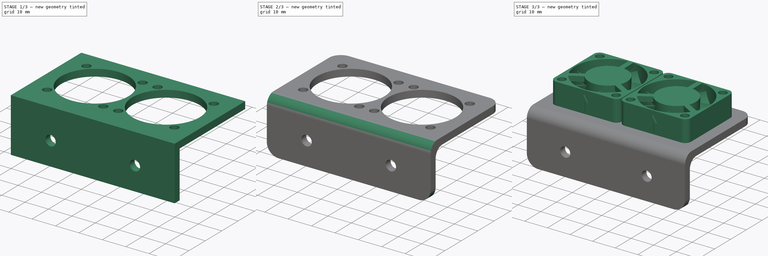
[diagram: build sequence overview — one tinted view per stage of 3, left to right]
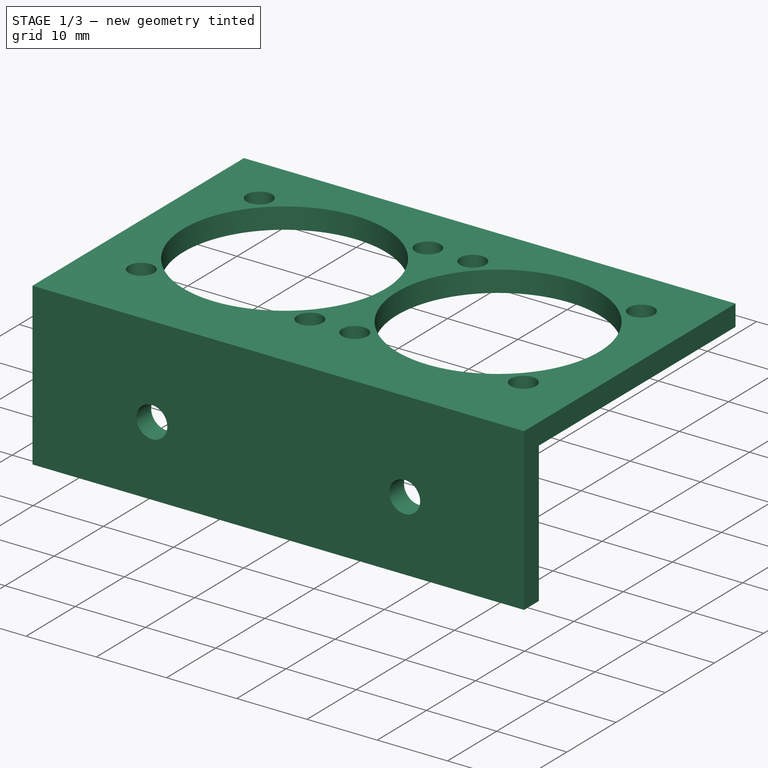
[diagram: stage 1 of 3 — iso view after this stage's code; geometry added in this stage tinted green]
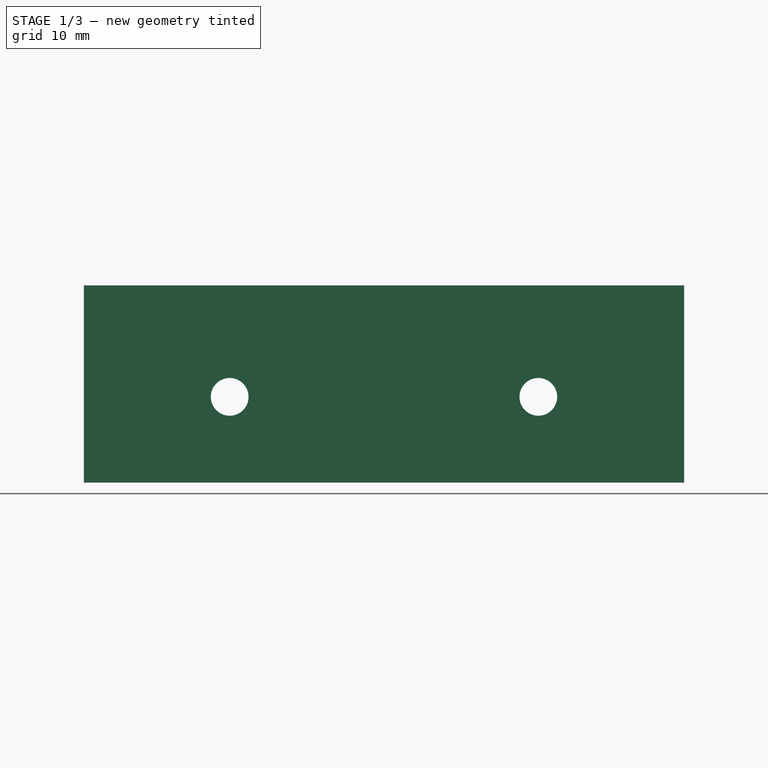
[diagram: stage 1 of 3 — front view after this stage's code; geometry added in this stage tinted green]
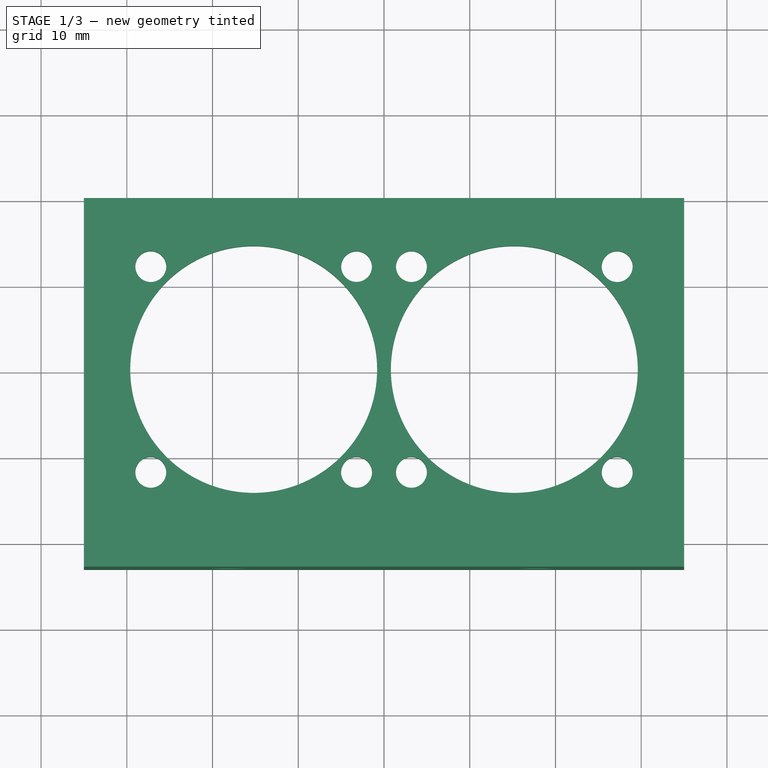
[diagram: stage 1 of 3 — top view after this stage's code; geometry added in this stage tinted green]
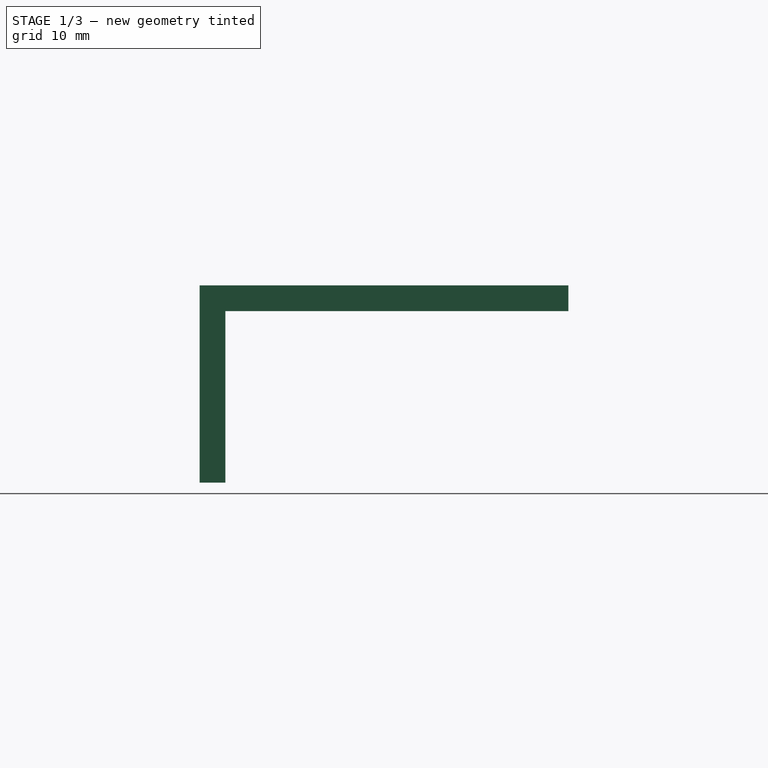
[diagram: stage 1 of 3 — right view after this stage's code; geometry added in this stage tinted green]
FCSTD DOCUMENT  (FreeCAD 0.16R6707 (Git))
Label: Dual_30mm_Fan Bracket
License: CreativeCommons Attribution-NonCommercial
LicenseURL: http://creativecommons.org/licenses/by-nc/4.0/
objects: Part::Feature×4, PartDesign::Fillet×3, Part::MultiFuse×2, Sketcher::SketchObject×2, PartDesign::Pad×2
note: 15 computed .brp shape members not serialized (recipe doc carries the construction recipe); baked Part::Feature solids carry a one-line shape summary decoded from their .brp

FEATURE [Sketcher::SketchObject] Sketch
  sketch-geometry (22):
    g0: LineSegment StartX=-35 StartY=20 StartZ=0 EndX=35 EndY=20 EndZ=0
    g1: LineSegment StartX=35 StartY=20 StartZ=0 EndX=35 EndY=-20 EndZ=0
    g2: LineSegment StartX=35 StartY=-20 StartZ=0 EndX=-35 EndY=-20 EndZ=0
    g3: LineSegment StartX=-35 StartY=-20 StartZ=0 EndX=-35 EndY=20 EndZ=0
    g4: Circle CenterX=-15.2 CenterY=0 CenterZ=0 NormalX=0 NormalY=0 NormalZ=1 Radius=14.4
    g5: Circle CenterX=15.2 CenterY=0 CenterZ=0 NormalX=0 NormalY=0 NormalZ=1 Radius=14.4
    g6: LineSegment [constr] StartX=-27.2 StartY=12 StartZ=0 EndX=-3.2 EndY=12 EndZ=0
    g7: LineSegment [constr] StartX=-3.2 StartY=12 StartZ=0 EndX=-3.2 EndY=-12 EndZ=0
    g8: LineSegment [constr] StartX=-3.2 StartY=-12 StartZ=0 EndX=-27.2 EndY=-12 EndZ=0
    g9: LineSegment [constr] StartX=-27.2 StartY=-12 StartZ=0 EndX=-27.2 EndY=12 EndZ=0
    g10: LineSegment [constr] StartX=3.2 StartY=12 StartZ=0 EndX=27.2 EndY=12 EndZ=0
    g11: LineSegment [constr] StartX=27.2 StartY=12 StartZ=0 EndX=27.2 EndY=-12 EndZ=0
    g12: LineSegment [constr] StartX=27.2 StartY=-12 StartZ=0 EndX=3.2 EndY=-12 EndZ=0
    g13: LineSegment [constr] StartX=3.2 StartY=-12 StartZ=0 EndX=3.2 EndY=12 EndZ=0
    g14: Circle CenterX=-27.2 CenterY=12 CenterZ=0 NormalX=0 NormalY=0 NormalZ=1 Radius=1.8
    g15: Circle CenterX=-3.2 CenterY=12 CenterZ=0 NormalX=0 NormalY=0 NormalZ=1 Radius=1.78947
    g16: Circle CenterX=-3.2 CenterY=-12 CenterZ=0 NormalX=0 NormalY=0 NormalZ=1 Radius=1.8
    g17: Circle CenterX=-27.2 CenterY=-12 CenterZ=0 NormalX=0 NormalY=0 NormalZ=1 Radius=1.8
    g18: Circle CenterX=3.2 CenterY=-12 CenterZ=0 NormalX=0 NormalY=0 NormalZ=1 Radius=1.8
    g19: Circle CenterX=27.2 CenterY=-12 CenterZ=0 NormalX=0 NormalY=0 NormalZ=1 Radius=1.8
    g20: Circle CenterX=27.2 CenterY=12 CenterZ=0 NormalX=0 NormalY=0 NormalZ=1 Radius=1.8
    g21: Circle CenterX=3.2 CenterY=12 CenterZ=0 NormalX=0 NormalY=0 NormalZ=1 Radius=1.8
  constraints (56):
    c: Coincident(g0,g1)
    c: Coincident(g1,g2)
    c: Coincident(g2,g3)
    c: Coincident(g3,g0)
    c: Horizontal(g0)
    c: Horizontal(g2)
    c: Vertical(g1)
    c: Vertical(g3)
    c: Symmetric(g0,g2,g-1)
    c: Symmetric(g2,g1,g-2)
    c: DistanceX(g2,g2) = 70
    c: DistanceY(g1,g1) = 40
    c: PointOnObject(g5,g-1)
    c: Symmetric(g5,g4,g-2)
    c: DistanceX(g4,g-1) = 15.2
    c: Radius(g5) = 14.4
    c: Equal(g5,g4)
    c: Coincident(g6,g7)
    c: Coincident(g7,g8)
    c: Coincident(g8,g9)
    c: Coincident(g9,g6)
    c: Horizontal(g6)
    c: Horizontal(g8)
    c: Vertical(g7)
    c: Vertical(g9)
    c: Coincident(g10,g11)
    c: Coincident(g11,g12)
    c: Coincident(g12,g13)
    c: Coincident(g13,g10)
    c: Horizontal(g10)
    c: Horizontal(g12)
    c: Vertical(g11)
    c: Vertical(g13)
    c: Symmetric(g7,g12,g-2)
    c: Symmetric(g12,g10,g-1)
    c: Symmetric(g7,g6,g-1)
    c: Equal(g8,g7)
    c: Equal(g7,g13)
    c: Equal(g13,g12)
    c: DistanceX(g7,g-1) = 3.2
    c: DistanceY(g7,g7) = 24
    c: Coincident(g14,g6)
    c: Coincident(g15,g6)
    c: Coincident(g16,g7)
    c: Coincident(g17,g8)
    c: Coincident(g18,g12)
    c: Coincident(g19,g11)
    c: Coincident(g20,g10)
    c: Coincident(g21,g10)
    c: Radius(g19) = 1.8
    c: Equal(g19,g21)
    c: Equal(g19,g20)
    c: Equal(g19,g18)
    c: Equal(g19,g16)
    c: Equal(g19,g17)
    c: Equal(g19,g14)
FEATURE [PartDesign::Pad] Pad
  Length = 3
  Length2 = 100
  Sketch = -> Sketch
  Type = 0
FEATURE [Sketcher::SketchObject] Sketch001
  Placement = pos=(0,-20,0) rot=(1,0,0;1.5708rad)
  Support = -> Pad [Face3]
  sketch-geometry (6):
    g0: LineSegment StartX=-35 StartY=3 StartZ=0 EndX=35 EndY=3 EndZ=0
    g1: LineSegment StartX=35 StartY=3 StartZ=0 EndX=35 EndY=-20 EndZ=0
    g2: LineSegment StartX=35 StartY=-20 StartZ=0 EndX=-35 EndY=-20 EndZ=0
    g3: LineSegment StartX=-35 StartY=-20 StartZ=0 EndX=-35 EndY=3 EndZ=0
    g4: Circle CenterX=-18 CenterY=-10 CenterZ=0 NormalX=0 NormalY=0 NormalZ=1 Radius=2.2
    g5: Circle CenterX=18 CenterY=-10 CenterZ=0 NormalX=0 NormalY=0 NormalZ=1 Radius=2.2
  constraints (17):
    c: Coincident(g0,g1)
    c: Coincident(g1,g2)
    c: Coincident(g2,g3)
    c: Coincident(g3,g0)
    c: Horizontal(g0)
    c: Horizontal(g2)
    c: Vertical(g1)
    c: Vertical(g3)
    c: Symmetric(g0,g0,g-2)
    c: DistanceY(g-1,g0) = 3
    c: DistanceX(g0,g0) = 70
    c: DistanceY(g3,g3) = 23
    c: Radius(g4) = 2.2
    c: Equal(g4,g5)
    c: DistanceY(g4,g-1) = 10
    c: Symmetric(g4,g5,g-2)
    c: DistanceX(g4,g-1) = 18
FEATURE [PartDesign::Pad] Pad001
  Length = 3
  Length2 = 100
  Sketch = -> Sketch001
  Type = 0
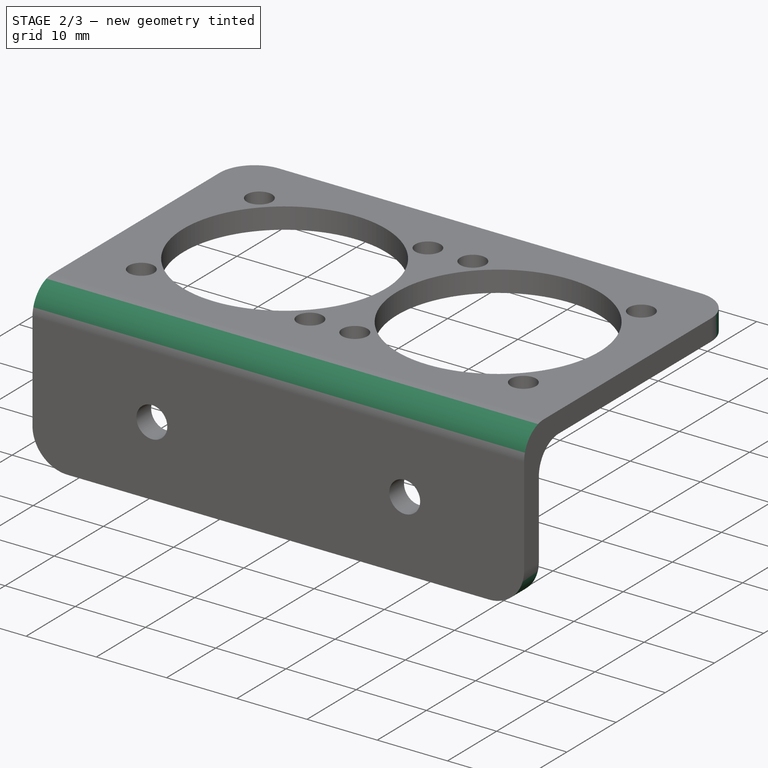
[diagram: stage 2 of 3 — iso view after this stage's code; geometry added in this stage tinted green]
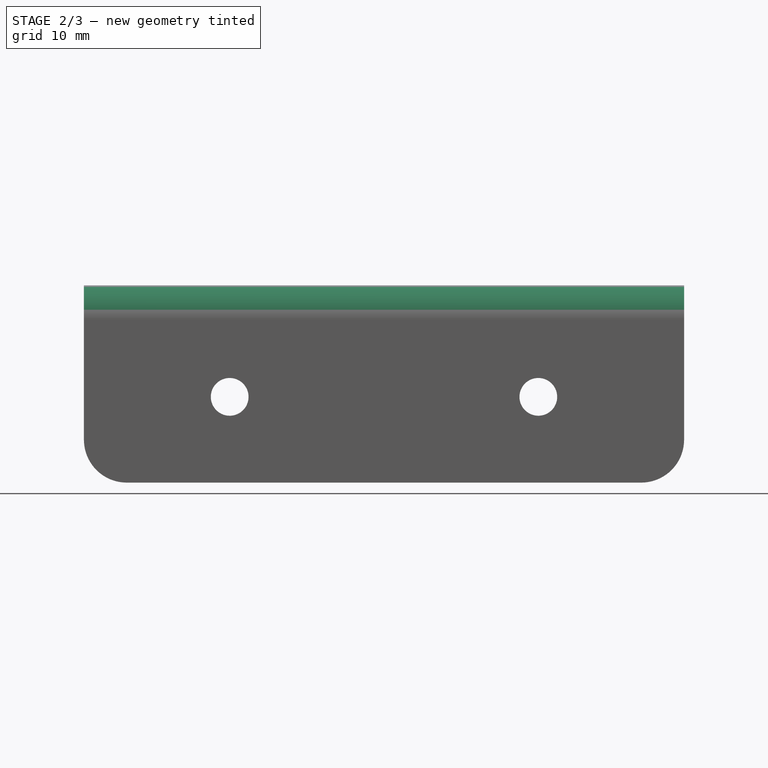
[diagram: stage 2 of 3 — front view after this stage's code; geometry added in this stage tinted green]
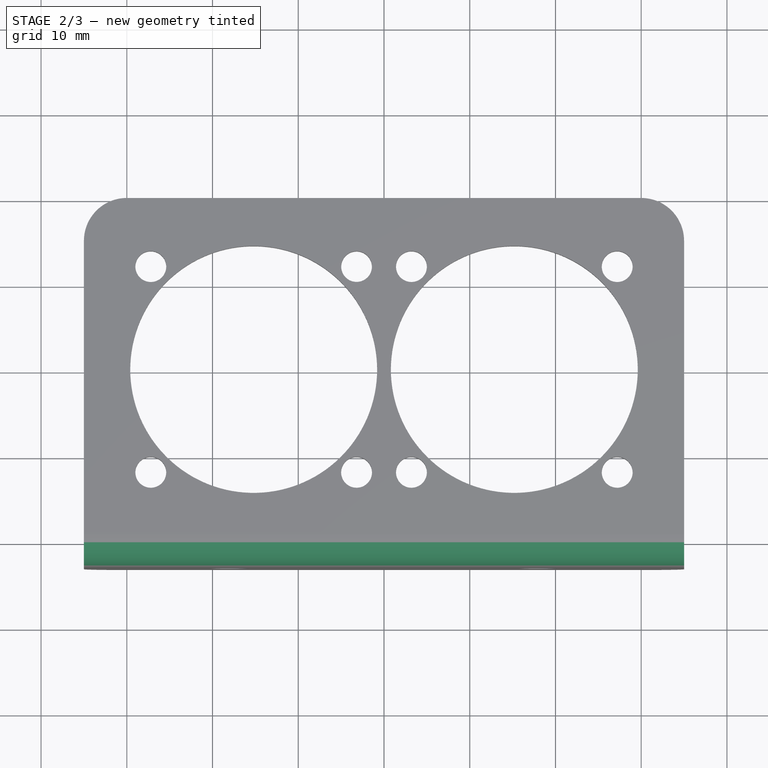
[diagram: stage 2 of 3 — top view after this stage's code; geometry added in this stage tinted green]
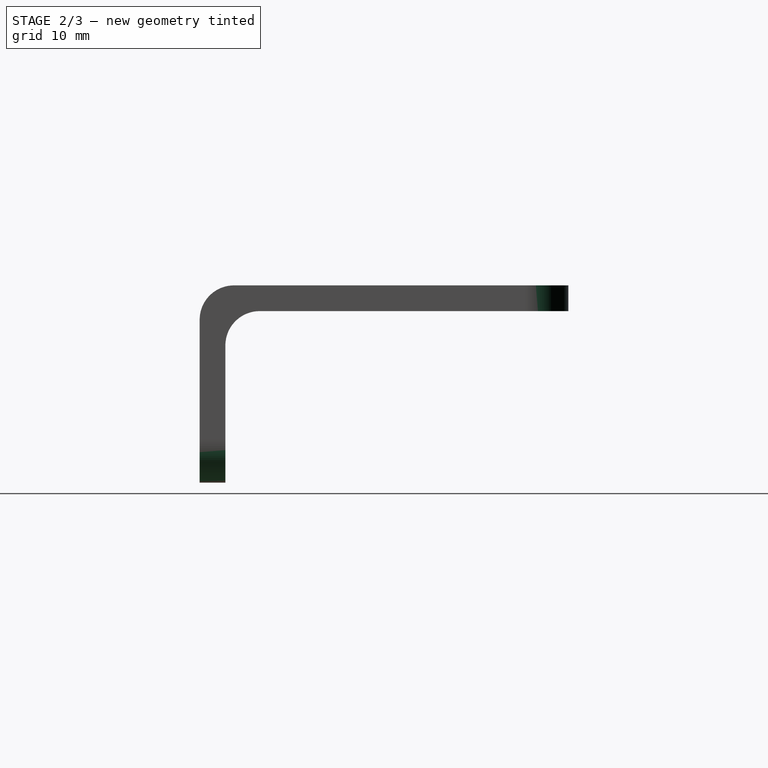
[diagram: stage 2 of 3 — right view after this stage's code; geometry added in this stage tinted green]
FEATURE [PartDesign::Fillet] Fillet
  Base = -> Pad001 [Edge7]
  Radius = 4
FEATURE [PartDesign::Fillet] Fillet001
  Base = -> Fillet [Edge16,Edge23,Edge26,Edge19]
  Radius = 5
FEATURE [PartDesign::Fillet] Fillet002
  Base = -> Fillet001 [Edge55]
  Radius = 4
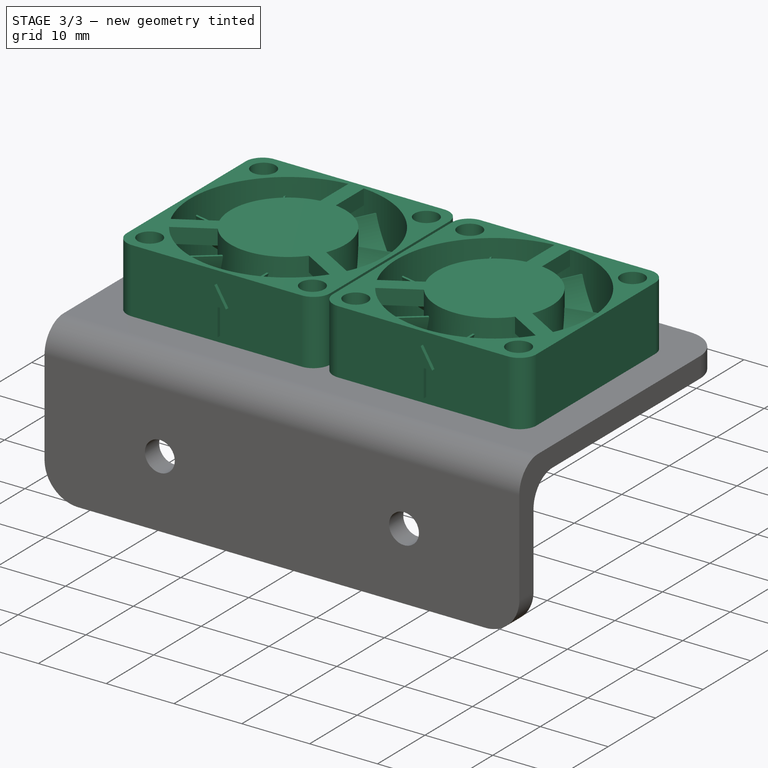
[diagram: stage 3 of 3 — iso view after this stage's code; geometry added in this stage tinted green]
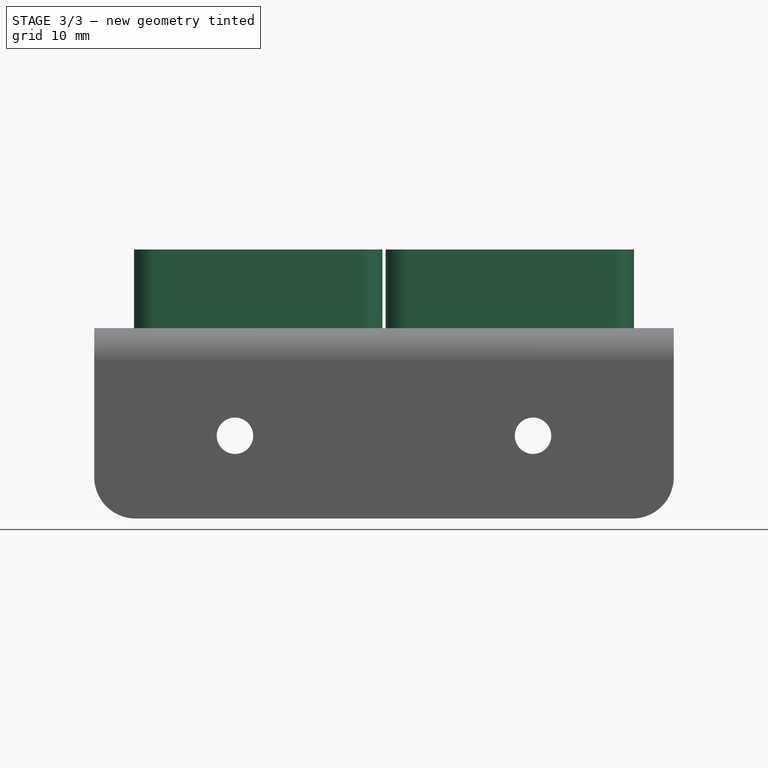
[diagram: stage 3 of 3 — front view after this stage's code; geometry added in this stage tinted green]
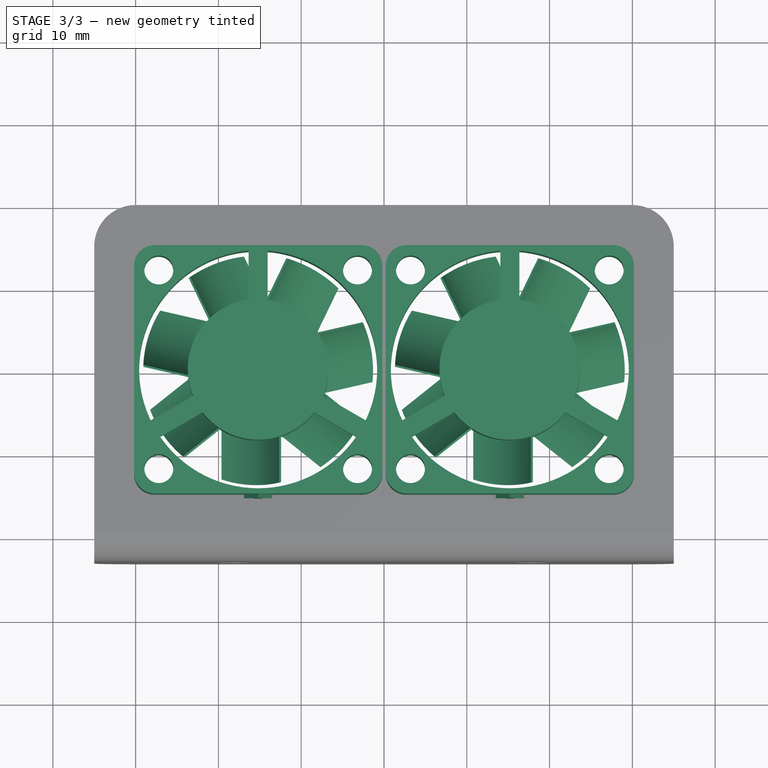
[diagram: stage 3 of 3 — top view after this stage's code; geometry added in this stage tinted green]
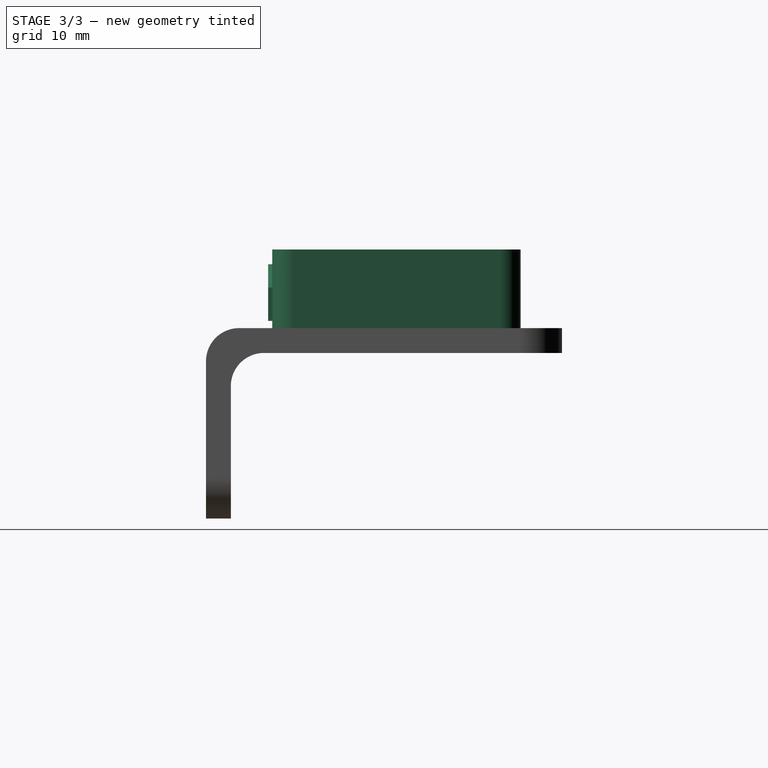
[diagram: stage 3 of 3 — right view after this stage's code; geometry added in this stage tinted green]
FEATURE [Part::Feature] Part__Feature  label="Part 1"
  shape: bbox 30 x 30.5 x 10.5 mm, 33 faces (baked)
FEATURE [Part::Feature] Part__Feature001  label="Part 2"
  shape: bbox 28.66 x 28.3 x 8.25 mm, 39 faces (baked)
FEATURE [Part::MultiFuse] Fusion
  Placement = pos=(15.2,0,2) rot=(0,0,1;0rad)
  Shapes = -> [Part__Feature,Part__Feature001]
FEATURE [Part::Feature] Part__Feature002  label="Part 1"
  shape: bbox 30 x 30.5 x 10.5 mm, 33 faces (baked)
FEATURE [Part::Feature] Part__Feature003  label="Part 2"
  shape: bbox 28.66 x 28.3 x 8.25 mm, 39 faces (baked)
FEATURE [Part::MultiFuse] Fusion001
  Placement = pos=(-15.2,0,2) rot=(0,0,1;0rad)
  Shapes = -> [Part__Feature002,Part__Feature003]
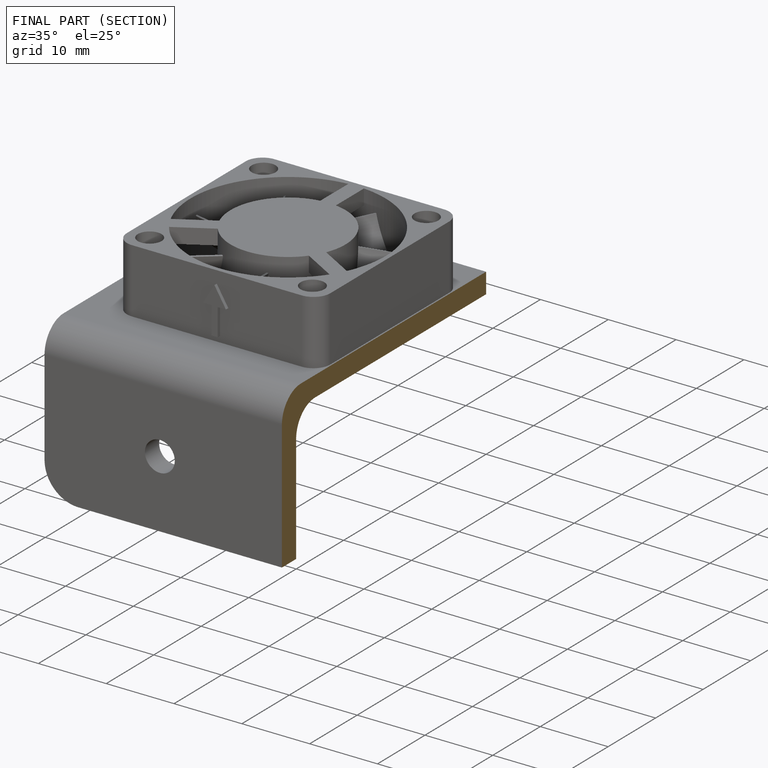
[diagram: finished part — half-section view (interior)]
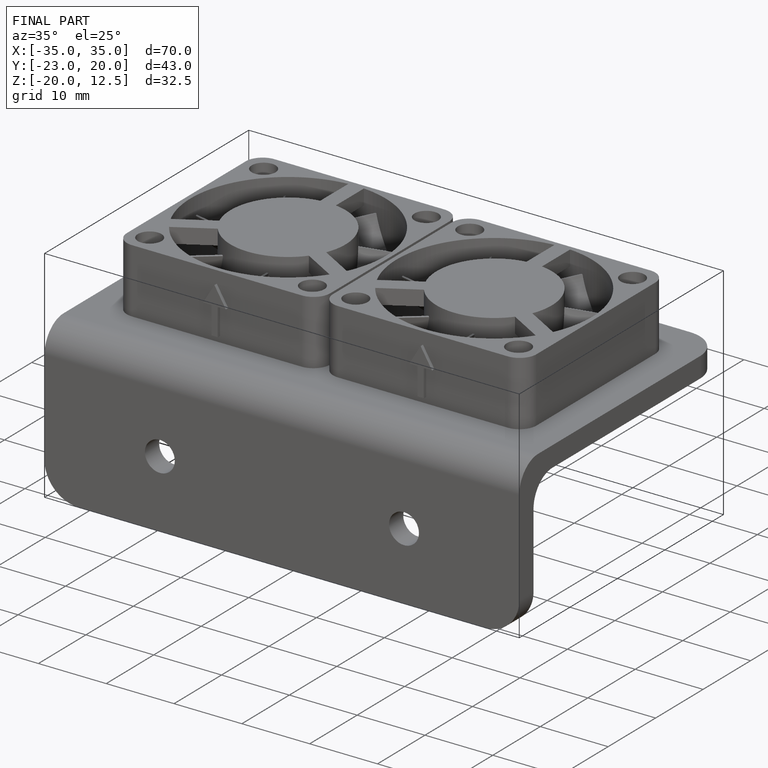
[diagram: finished part — iso view with bounding-box wireframe]
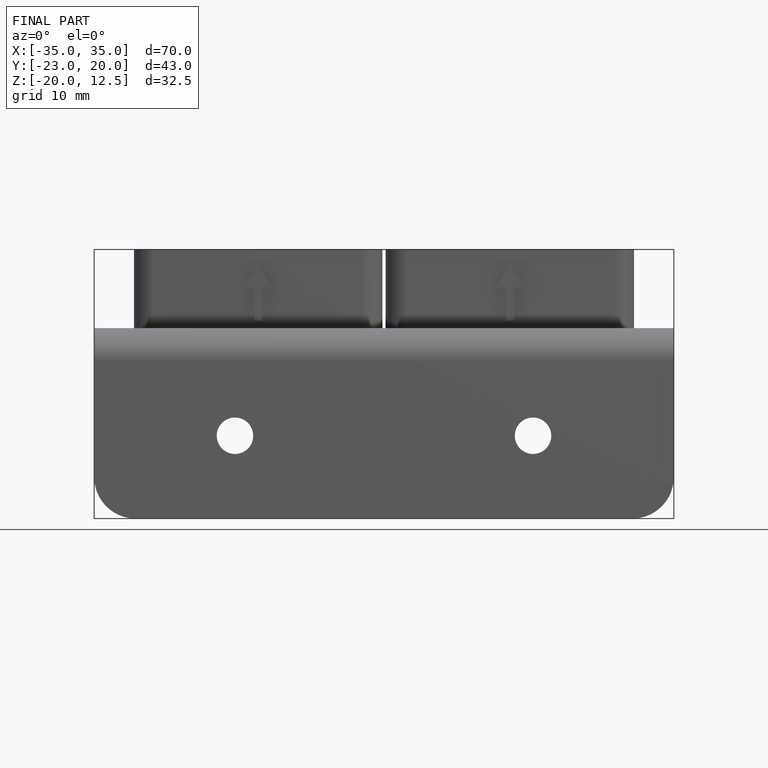
[diagram: finished part — front view with bounding-box wireframe]
